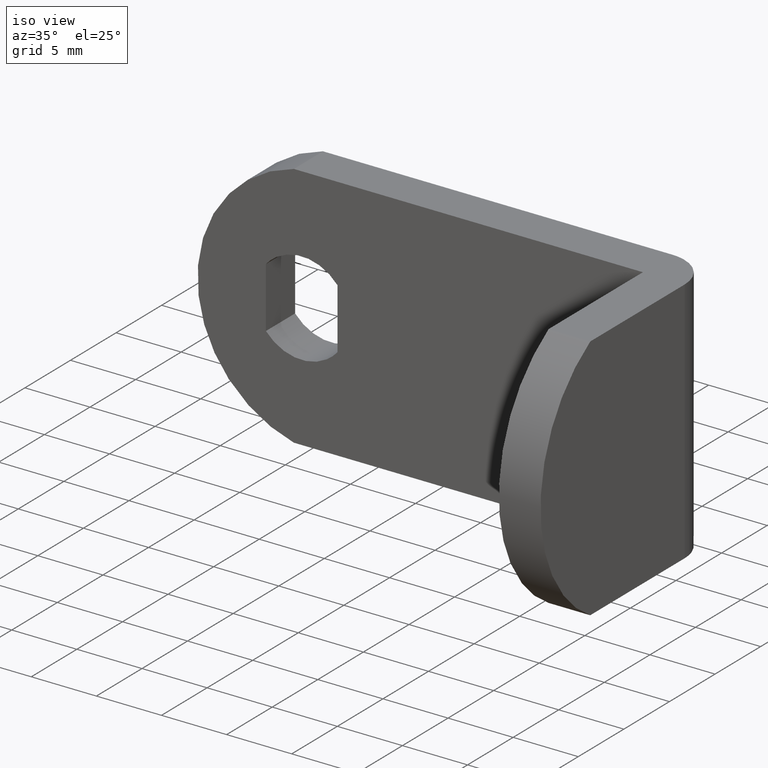
[diagram: clean part render]
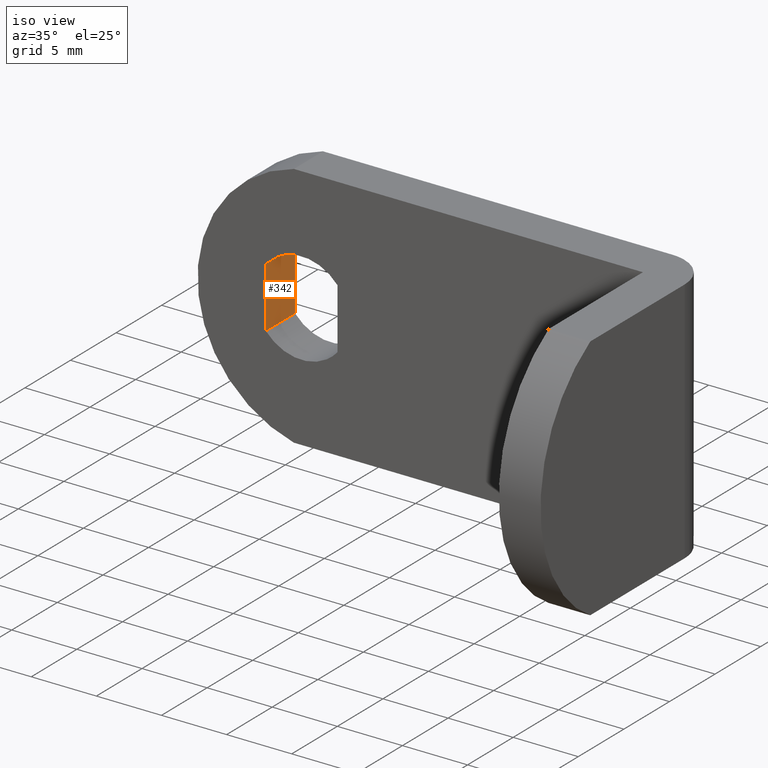
[diagram: same view with one face highlighted and labeled with its STEP entity id]
A machine part, iso view. The second image highlights one B-rep face of the part: STEP entity #342.
In plain terms, the highlighted face is a freeform B-spline surface patch.
Its self-contained STEP definition (entity closure, byte-faithful):
#237=CARTESIAN_POINT('',(-2.750000000000000,0.0,2.323252031097770));
#238=VERTEX_POINT('',#237);
#254=CARTESIAN_POINT('',(-2.750000000000000,0.0,-2.323252031097770));
#255=VERTEX_POINT('',#254);
#256=CARTESIAN_POINT('',(-2.750000000000000,0.0,2.323252031097770));
#257=CARTESIAN_POINT('',(-2.750000000000000,0.0,-2.323252031097770));
#258=QUASI_UNIFORM_CURVE('',1,(#256,#257),.UNSPECIFIED.,.F.,.U.);
#259=EDGE_CURVE('',#238,#255,#258,.T.);
#315=CARTESIAN_POINT('',(-2.750000000000000,-3.359840053876400,2.555344839779979));
#316=CARTESIAN_POINT('',(-2.750000000000000,-3.359840053876400,-2.555344673608044));
#317=CARTESIAN_POINT('',(-2.750000000000000,0.159840082486630,2.555344839779979));
#318=CARTESIAN_POINT('',(-2.750000000000000,0.159840082486630,-2.555344673608044));
#319=B_SPLINE_SURFACE_WITH_KNOTS('',1,1,((#315,#317),(#316,#318)),.UNSPECIFIED.,.F.,.F.,.U.,(2,2),(2,2),(0.0,5.110689513388023),(0.0,3.519680136363030),.UNSPECIFIED.);
#320=ORIENTED_EDGE('',*,*,#259,.F.);
#321=CARTESIAN_POINT('',(-2.750000000000000,-3.200000000000000,2.323252031097770));
#322=VERTEX_POINT('',#321);
#323=CARTESIAN_POINT('',(-2.750000000000000,-3.200000000000000,2.323252031097770));
#324=CARTESIAN_POINT('',(-2.750000000000000,0.0,2.323252031097770));
#325=QUASI_UNIFORM_CURVE('',1,(#323,#324),.UNSPECIFIED.,.F.,.U.);
#326=EDGE_CURVE('',#322,#238,#325,.T.);
#327=ORIENTED_EDGE('',*,*,#326,.F.);
#328=CARTESIAN_POINT('',(-2.750000000000000,-3.200000000000000,-2.323252031097770));
#329=VERTEX_POINT('',#328);
#330=CARTESIAN_POINT('',(-2.750000000000000,-3.200000000000000,2.323252031097770));
#331=CARTESIAN_POINT('',(-2.750000000000000,-3.200000000000000,-2.323252031097770));
#332=QUASI_UNIFORM_CURVE('',1,(#330,#331),.UNSPECIFIED.,.F.,.U.);
#333=EDGE_CURVE('',#322,#329,#332,.T.);
#334=ORIENTED_EDGE('',*,*,#333,.T.);
#335=CARTESIAN_POINT('',(-2.750000000000000,-3.200000000000000,-2.323252031097770));
#336=CARTESIAN_POINT('',(-2.750000000000000,0.0,-2.323252031097770));
#337=QUASI_UNIFORM_CURVE('',1,(#335,#336),.UNSPECIFIED.,.F.,.U.);
#338=EDGE_CURVE('',#329,#255,#337,.T.);
#339=ORIENTED_EDGE('',*,*,#338,.T.);
#340=EDGE_LOOP('',(#320,#327,#334,#339));
#341=FACE_OUTER_BOUND('',#340,.T.);
#342=ADVANCED_FACE('',(#341),#319,.T.);